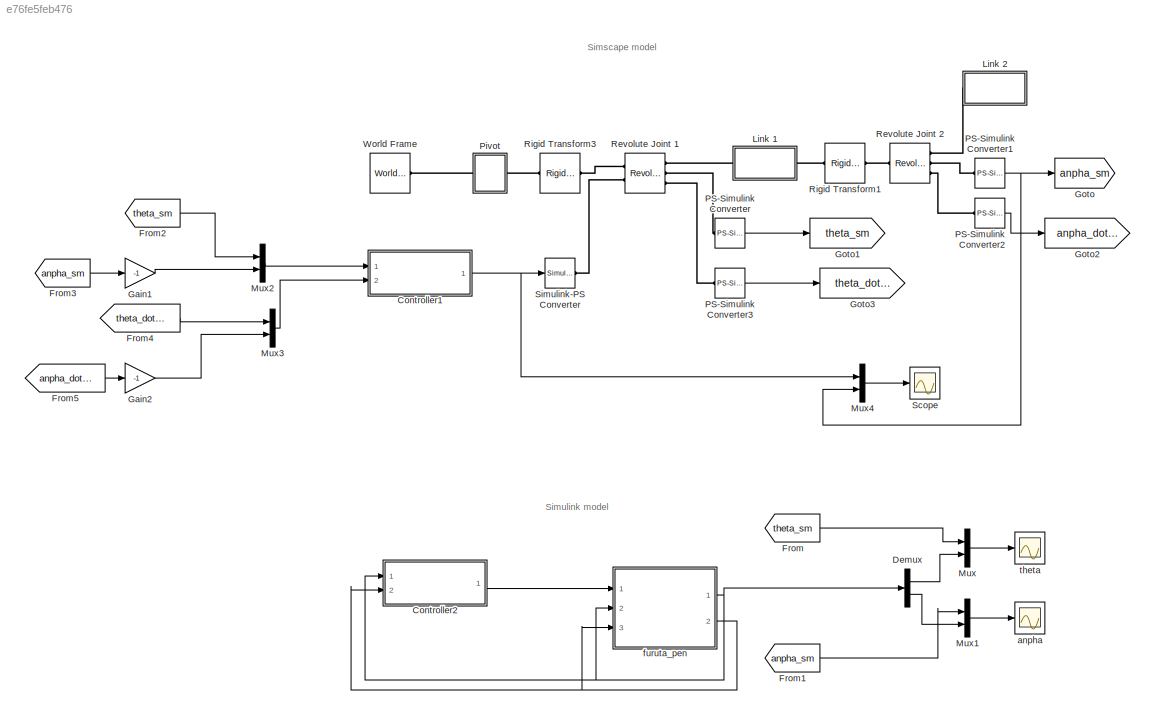
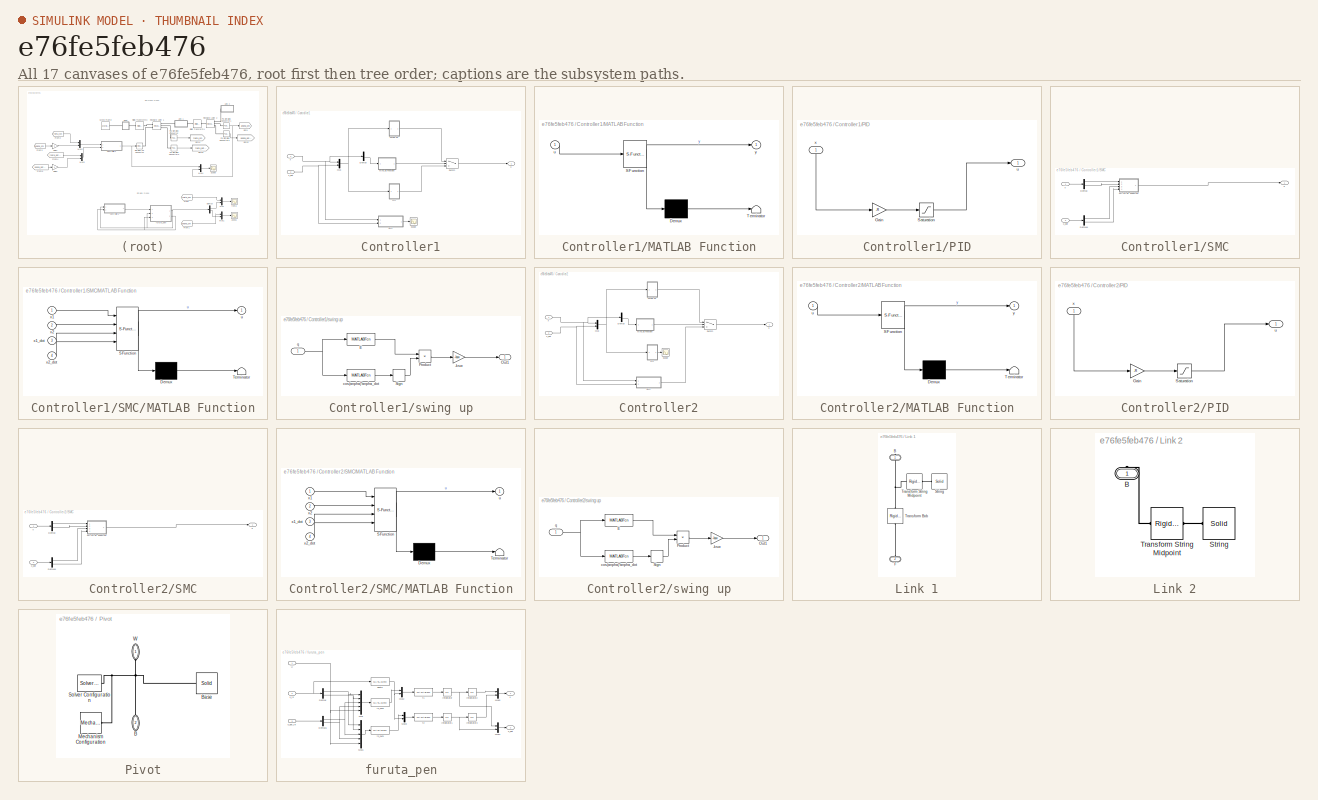
[diagram: thumbnail index - all 17 canvases of the model, root first then tree order]
MODEL slx_e76fe5feb476
KIND model
CONFIG AbsTol = auto
CONFIG EnableMultiTasking = off
CONFIG FixedStep = auto
CONFIG MaxStep = auto
CONFIG MinStep = auto
CONFIG RelTol = 1e-3
CONFIG SampleTimeConstraint = Unconstrained
CONFIG Solver = VariableStepAuto
CONFIG SolverName = VariableStepAuto
CONFIG StartTime = 0.0
CONFIG StopTime = 10.0
BLOCK [SubSystem] Controller1
  Ports = [2, 1]
  RequestExecContextInheritance = off
  Variant = off
BLOCK [Demux] Controller1/Demux
  DisplayOption = bar
  Outputs = 2
  Ports = [1, 2]
BLOCK [SubSystem] Controller1/MATLAB Function
  ErrorFcn = Stateflow.Translate.translate
  PermitHierarchicalResolution = ExplicitOnly
  Ports = [1, 1]
  RequestExecContextInheritance = off
  SFBlockType = MATLAB Function
  TreatAsAtomicUnit = on
  Variant = off
BLOCK [Demux] Controller1/MATLAB Function/ Demux 
  Outputs = 1
  Ports = [1, 1]
BLOCK [S-Function] Controller1/MATLAB Function/ SFunction 
  EnableBusSupport = on
  FunctionName = sf_sfun
  PortCounts = [1 2]
  Ports = [1, 2]
  SFcnIsStateOwnerBlock = off
  SFunctionDeploymentMode = off
  Tag = Stateflow S-Function furuta_pen 4
BLOCK [Terminator] Controller1/MATLAB Function/ Terminator 
BLOCK [Inport] Controller1/MATLAB Function/u
  IconDisplay = Port number
BLOCK [Outport] Controller1/MATLAB Function/y
  IconDisplay = Port number
BLOCK [Mux] Controller1/Mux
  DisplayOption = bar
  Inputs = 2
  Ports = [2, 1]
BLOCK [SubSystem] Controller1/PID
  Ports = [1, 1]
  RequestExecContextInheritance = off
  Variant = off
BLOCK [Gain] Controller1/PID/Gain
  Gain = -R
  Multiplication = Matrix(K*u)
  OutDataTypeStr = Inherit: Inherit via internal rule
  ParamDataTypeStr = Inherit: Inherit via internal rule
  SaturateOnIntegerOverflow = off
BLOCK [Saturate] Controller1/PID/Saturation
  InputPortMap = u0
  LowerLimit = -up
  Ports = [1, 1]
  UpperLimit = up
BLOCK [Outport] Controller1/PID/u
  IconDisplay = Port number
BLOCK [Inport] Controller1/PID/x
  IconDisplay = Port number
BLOCK [SubSystem] Controller1/SMC
  Ports = [2, 1]
  RequestExecContextInheritance = off
  Variant = off
BLOCK [Demux] Controller1/SMC/Demux
  DisplayOption = bar
  Outputs = 2
  Ports = [1, 2]
BLOCK [Demux] Controller1/SMC/Demux1
  DisplayOption = bar
  Outputs = 2
  Ports = [1, 2]
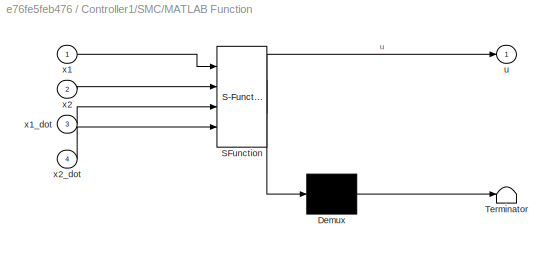
BLOCK [SubSystem] Controller1/SMC/MATLAB Function
  ErrorFcn = Stateflow.Translate.translate
  PermitHierarchicalResolution = ExplicitOnly
  Ports = [4, 1]
  RequestExecContextInheritance = off
  SFBlockType = MATLAB Function
  TreatAsAtomicUnit = on
  Variant = off
BLOCK [Demux] Controller1/SMC/MATLAB Function/ Demux 
  Outputs = 1
  Ports = [1, 1]
BLOCK [S-Function] Controller1/SMC/MATLAB Function/ SFunction 
  EnableBusSupport = on
  FunctionName = sf_sfun
  PortCounts = [4 2]
  Ports = [4, 2]
  SFcnIsStateOwnerBlock = off
  SFunctionDeploymentMode = off
  Tag = Stateflow S-Function furuta_pen 2
BLOCK [Terminator] Controller1/SMC/MATLAB Function/ Terminator 
BLOCK [Outport] Controller1/SMC/MATLAB Function/u
  IconDisplay = Port number
BLOCK [Inport] Controller1/SMC/MATLAB Function/x1
  IconDisplay = Port number
BLOCK [Inport] Controller1/SMC/MATLAB Function/x1_dot
  IconDisplay = Port number
  Port = 3
BLOCK [Inport] Controller1/SMC/MATLAB Function/x2
  IconDisplay = Port number
  Port = 2
BLOCK [Inport] Controller1/SMC/MATLAB Function/x2_dot
  IconDisplay = Port number
  Port = 4
BLOCK [Outport] Controller1/SMC/u
  IconDisplay = Port number
BLOCK [Inport] Controller1/SMC/x
  IconDisplay = Port number
BLOCK [Inport] Controller1/SMC/x_dot
  IconDisplay = Port number
  Port = 2
BLOCK [Scope] Controller1/Scope
  NumInputPorts = 1
  Ports = [1]
  ScopeSpecificationString = Simulink.scopes.TimeScopeBlockCfg('CurrentConfiguration', extmgr.ConfigurationSet(extmgr.Configuration('Core','General UI',true),extmgr.Configuration('Core','Source UI',true),extmgr.Configuration('Sources','WiredSimulink',true,'DataLoggingVariableName','ScopeData1'),extmgr.Configuration('Visuals','Time Domain',true),extmgr.Configuration('Tools','Plot Navigation',true),extmgr.Configuration('Tools',...<+40ch>
BLOCK [Switch] Controller1/Switch
  Criteria = u2 > Threshold
  InputSameDT = off
  SaturateOnIntegerOverflow = off
BLOCK [SubSystem] Controller1/swing up
  Ports = [1, 1]
  RequestExecContextInheritance = off
  Variant = off
BLOCK [Gain] Controller1/swing up/-ksw
  Gain = -ksw
  OutDataTypeStr = Inherit: Inherit via internal rule
  ParamDataTypeStr = Inherit: Inherit via internal rule
  SaturateOnIntegerOverflow = off
BLOCK [MATLABFcn] Controller1/swing up/E
  MATLABFcn = 1/2*(J1+m1*L1^2)*u(4)^2+m1*g*L1*(cos(u(2))-1)
  Ports = [1, 1]
BLOCK [Outport] Controller1/swing up/Out1
  IconDisplay = Port number
BLOCK [Product] Controller1/swing up/Product
  InputSameDT = off
  OutDataTypeStr = Inherit: Inherit via internal rule
  Ports = [2, 1]
  RndMeth = Floor
  SaturateOnIntegerOverflow = off
BLOCK [Signum] Controller1/swing up/Sign
BLOCK [MATLABFcn] Controller1/swing up/cos(anpha)*anpha_dot
  MATLABFcn = cos(u(2))*u(4)
  Ports = [1, 1]
BLOCK [Inport] Controller1/swing up/q
  IconDisplay = Port number
BLOCK [Outport] Controller1/u
  IconDisplay = Port number
BLOCK [Inport] Controller1/x
  IconDisplay = Port number
BLOCK [Inport] Controller1/x_dot
  IconDisplay = Port number
  Port = 2
BLOCK [SubSystem] Controller2
  Ports = [2, 1]
  RequestExecContextInheritance = off
  Variant = off
BLOCK [Demux] Controller2/Demux
  DisplayOption = bar
  Outputs = 2
  Ports = [1, 2]
BLOCK [SubSystem] Controller2/MATLAB Function
  ErrorFcn = Stateflow.Translate.translate
  PermitHierarchicalResolution = ExplicitOnly
  Ports = [1, 1]
  RequestExecContextInheritance = off
  SFBlockType = MATLAB Function
  TreatAsAtomicUnit = on
  Variant = off
BLOCK [Demux] Controller2/MATLAB Function/ Demux 
  Outputs = 1
  Ports = [1, 1]
BLOCK [S-Function] Controller2/MATLAB Function/ SFunction 
  EnableBusSupport = on
  FunctionName = sf_sfun
  PortCounts = [1 2]
  Ports = [1, 2]
  SFcnIsStateOwnerBlock = off
  SFunctionDeploymentMode = off
  Tag = Stateflow S-Function furuta_pen 1
BLOCK [Terminator] Controller2/MATLAB Function/ Terminator 
BLOCK [Inport] Controller2/MATLAB Function/u
  IconDisplay = Port number
BLOCK [Outport] Controller2/MATLAB Function/y
  IconDisplay = Port number
BLOCK [Mux] Controller2/Mux
  DisplayOption = bar
  Inputs = 2
  Ports = [2, 1]
BLOCK [SubSystem] Controller2/PID
  Ports = [1, 1]
  RequestExecContextInheritance = off
  Variant = off
BLOCK [Gain] Controller2/PID/Gain
  Gain = -R
  Multiplication = Matrix(K*u)
  OutDataTypeStr = Inherit: Inherit via internal rule
  ParamDataTypeStr = Inherit: Inherit via internal rule
  SaturateOnIntegerOverflow = off
BLOCK [Saturate] Controller2/PID/Saturation
  InputPortMap = u0
  LowerLimit = -up
  Ports = [1, 1]
  UpperLimit = up
BLOCK [Outport] Controller2/PID/u
  IconDisplay = Port number
BLOCK [Inport] Controller2/PID/x
  IconDisplay = Port number
BLOCK [SubSystem] Controller2/SMC
  Ports = [2, 1]
  RequestExecContextInheritance = off
  Variant = off
BLOCK [Demux] Controller2/SMC/Demux
  DisplayOption = bar
  Outputs = 2
  Ports = [1, 2]
BLOCK [Demux] Controller2/SMC/Demux1
  DisplayOption = bar
  Outputs = 2
  Ports = [1, 2]
BLOCK [SubSystem] Controller2/SMC/MATLAB Function
  ErrorFcn = Stateflow.Translate.translate
  PermitHierarchicalResolution = ExplicitOnly
  Ports = [4, 1]
  RequestExecContextInheritance = off
  SFBlockType = MATLAB Function
  TreatAsAtomicUnit = on
  Variant = off
BLOCK [Demux] Controller2/SMC/MATLAB Function/ Demux 
  Outputs = 1
  Ports = [1, 1]
BLOCK [S-Function] Controller2/SMC/MATLAB Function/ SFunction 
  EnableBusSupport = on
  FunctionName = sf_sfun
  PortCounts = [4 2]
  Ports = [4, 2]
  SFcnIsStateOwnerBlock = off
  SFunctionDeploymentMode = off
  Tag = Stateflow S-Function furuta_pen 3
BLOCK [Terminator] Controller2/SMC/MATLAB Function/ Terminator 
BLOCK [Outport] Controller2/SMC/MATLAB Function/u
  IconDisplay = Port number
BLOCK [Inport] Controller2/SMC/MATLAB Function/x1
  IconDisplay = Port number
BLOCK [Inport] Controller2/SMC/MATLAB Function/x1_dot
  IconDisplay = Port number
  Port = 3
BLOCK [Inport] Controller2/SMC/MATLAB Function/x2
  IconDisplay = Port number
  Port = 2
BLOCK [Inport] Controller2/SMC/MATLAB Function/x2_dot
  IconDisplay = Port number
  Port = 4
BLOCK [Outport] Controller2/SMC/u
  IconDisplay = Port number
BLOCK [Inport] Controller2/SMC/x
  IconDisplay = Port number
BLOCK [Inport] Controller2/SMC/x_dot
  IconDisplay = Port number
  Port = 2
BLOCK [Scope] Controller2/Scope
  NumInputPorts = 1
  Ports = [1]
  ScopeSpecificationString = Simulink.scopes.TimeScopeBlockCfg('CurrentConfiguration', extmgr.ConfigurationSet(extmgr.Configuration('Core','General UI',true),extmgr.Configuration('Core','Source UI',true),extmgr.Configuration('Sources','WiredSimulink',true,'DataLoggingVariableName','ScopeData1'),extmgr.Configuration('Visuals','Time Domain',true),extmgr.Configuration('Tools','Plot Navigation',true),extmgr.Configuration('Tools',...<+40ch>
BLOCK [Switch] Controller2/Switch
  Criteria = u2 > Threshold
  InputSameDT = off
  SaturateOnIntegerOverflow = off
BLOCK [SubSystem] Controller2/swing up
  Ports = [1, 1]
  RequestExecContextInheritance = off
  Variant = off
BLOCK [Gain] Controller2/swing up/-ksw
  Gain = -ksw
  OutDataTypeStr = Inherit: Inherit via internal rule
  ParamDataTypeStr = Inherit: Inherit via internal rule
  SaturateOnIntegerOverflow = off
BLOCK [MATLABFcn] Controller2/swing up/E
  MATLABFcn = 1/2*(J1+m1*L1^2)*u(4)^2+m1*g*L1*(cos(u(2))-1)
  Ports = [1, 1]
BLOCK [Outport] Controller2/swing up/Out1
  IconDisplay = Port number
BLOCK [Product] Controller2/swing up/Product
  InputSameDT = off
  OutDataTypeStr = Inherit: Inherit via internal rule
  Ports = [2, 1]
  RndMeth = Floor
  SaturateOnIntegerOverflow = off
BLOCK [Signum] Controller2/swing up/Sign
BLOCK [MATLABFcn] Controller2/swing up/cos(anpha)*anpha_dot
  MATLABFcn = cos(u(2))*u(4)
  Ports = [1, 1]
BLOCK [Inport] Controller2/swing up/q
  IconDisplay = Port number
BLOCK [Outport] Controller2/u
  IconDisplay = Port number
BLOCK [Inport] Controller2/x
  IconDisplay = Port number
BLOCK [Inport] Controller2/x_dot
  IconDisplay = Port number
  Port = 2
BLOCK [Demux] Demux
  DisplayOption = bar
  Outputs = 2
  Ports = [1, 2]
BLOCK [From] From
  GotoTag = theta_sm
BLOCK [From] From1
  GotoTag = anpha_sm
BLOCK [From] From2
  GotoTag = theta_sm
BLOCK [From] From3
  GotoTag = anpha_sm
BLOCK [From] From4
  GotoTag = theta_dot_sm
BLOCK [From] From5
  GotoTag = anpha_dot_sm
BLOCK [Gain] Gain1
  Gain = -1
  OutDataTypeStr = Inherit: Inherit via internal rule
  ParamDataTypeStr = Inherit: Inherit via internal rule
  SaturateOnIntegerOverflow = off
BLOCK [Gain] Gain2
  Gain = -1
  OutDataTypeStr = Inherit: Inherit via internal rule
  ParamDataTypeStr = Inherit: Inherit via internal rule
  SaturateOnIntegerOverflow = off
BLOCK [Goto] Goto
  GotoTag = anpha_sm
BLOCK [Goto] Goto1
  GotoTag = theta_sm
BLOCK [Goto] Goto2
  GotoTag = anpha_dot_sm
BLOCK [Goto] Goto3
  GotoTag = theta_dot_sm
BLOCK [SubSystem] Link 1
  Ports = [0, 0, 0, 0, 0, 1, 1]
  RequestExecContextInheritance = off
  Tag = CustomStyle
  Variant = off
BLOCK [PMIOPort] Link 1/B
  Port = 1
  Side = Right
BLOCK [PMIOPort] Link 1/F
  Port = 2
  Side = Left
BLOCK [Reference] Link 1/String  REF=sm_lib/Body Elements/Solid
  Ports = [0, 0, 0, 0, 0, 0, 1]
  SourceBlock = sm_lib/Body Elements/Solid
  SourceProductBaseCode = MS
  SourceProductName = Simscape Multibody
  SourceType = Solid
BLOCK [Reference] Link 1/Transform Bob   REF=sm_lib/Frames and
Transforms/Rigid
Transform
  Ports = [0, 0, 0, 0, 0, 1, 1]
  SourceBlock = sm_lib/Frames and\nTransforms/Rigid\nTransform
  SourceProductBaseCode = MS
  SourceProductName = Simscape Multibody
  SourceType = Rigid\nTransform
BLOCK [Reference] Link 1/Transform String Midpoint  REF=sm_lib/Frames and
Transforms/Rigid
Transform
  Ports = [0, 0, 0, 0, 0, 1, 1]
  SourceBlock = sm_lib/Frames and\nTransforms/Rigid\nTransform
  SourceProductBaseCode = MS
  SourceProductName = Simscape Multibody
  SourceType = Rigid\nTransform
BLOCK [SubSystem] Link 2
  Ports = [0, 0, 0, 0, 0, 0, 1]
  RequestExecContextInheritance = off
  Tag = CustomStyle
  Variant = off
BLOCK [PMIOPort] Link 2/B
  Port = 1
  Side = Right
BLOCK [Reference] Link 2/String  REF=sm_lib/Body Elements/Solid
  Ports = [0, 0, 0, 0, 0, 0, 1]
  SourceBlock = sm_lib/Body Elements/Solid
  SourceProductBaseCode = MS
  SourceProductName = Simscape Multibody
  SourceType = Solid
BLOCK [Reference] Link 2/Transform String Midpoint  REF=sm_lib/Frames and
Transforms/Rigid
Transform
  Ports = [0, 0, 0, 0, 0, 1, 1]
  SourceBlock = sm_lib/Frames and\nTransforms/Rigid\nTransform
  SourceProductBaseCode = MS
  SourceProductName = Simscape Multibody
  SourceType = Rigid\nTransform
BLOCK [Mux] Mux
  DisplayOption = bar
  Inputs = 2
  Ports = [2, 1]
BLOCK [Mux] Mux1
  DisplayOption = bar
  Inputs = 2
  Ports = [2, 1]
BLOCK [Mux] Mux2
  DisplayOption = bar
  Inputs = 2
  Ports = [2, 1]
BLOCK [Mux] Mux3
  DisplayOption = bar
  Inputs = 2
  Ports = [2, 1]
BLOCK [Mux] Mux4
  DisplayOption = bar
  Inputs = 2
  Ports = [2, 1]
BLOCK [Reference] PS-Simulink Converter  REF=nesl_utility/PS-Simulink
Converter
  Ports = [0, 1, 0, 0, 0, 1]
  SourceBlock = nesl_utility/PS-Simulink\nConverter
  SourceProductBaseCode = SS
  SourceProductName = Simscape
  SourceType = PS-Simulink\nConverter
BLOCK [Reference] PS-Simulink Converter1  REF=nesl_utility/PS-Simulink
Converter
  Ports = [0, 1, 0, 0, 0, 1]
  SourceBlock = nesl_utility/PS-Simulink\nConverter
  SourceProductBaseCode = SS
  SourceProductName = Simscape
  SourceType = PS-Simulink\nConverter
BLOCK [Reference] PS-Simulink Converter2  REF=nesl_utility/PS-Simulink
Converter
  Ports = [0, 1, 0, 0, 0, 1]
  SourceBlock = nesl_utility/PS-Simulink\nConverter
  SourceProductBaseCode = SS
  SourceProductName = Simscape
  SourceType = PS-Simulink\nConverter
BLOCK [Reference] PS-Simulink Converter3  REF=nesl_utility/PS-Simulink
Converter
  Ports = [0, 1, 0, 0, 0, 1]
  SourceBlock = nesl_utility/PS-Simulink\nConverter
  SourceProductBaseCode = SS
  SourceProductName = Simscape
  SourceType = PS-Simulink\nConverter
BLOCK [SubSystem] Pivot
  Ports = [0, 0, 0, 0, 0, 1, 1]
  RequestExecContextInheritance = off
  Tag = CustomStyle
  Variant = off
BLOCK [PMIOPort] Pivot/B
  Port = 2
  Side = Right
BLOCK [Reference] Pivot/Base  REF=sm_lib/Body Elements/Solid
  Ports = [0, 0, 0, 0, 0, 0, 1]
  SourceBlock = sm_lib/Body Elements/Solid
  SourceProductBaseCode = MS
  SourceProductName = Simscape Multibody
  SourceType = Solid
BLOCK [Reference] Pivot/Mechanism Configuration  REF=sm_lib/Utilities/Mechanism
Configuration
  Ports = [0, 0, 0, 0, 0, 0, 1]
  SourceBlock = sm_lib/Utilities/Mechanism\nConfiguration
  SourceProductBaseCode = MS
  SourceProductName = Simscape Multibody
  SourceType = Mechanism\nConfiguration
BLOCK [Reference] Pivot/Solver Configuration  REF=nesl_utility/Solver
Configuration
  Ports = [0, 0, 0, 0, 0, 0, 1]
  SourceBlock = nesl_utility/Solver\nConfiguration
  SourceProductBaseCode = SS
  SourceProductName = Simscape
  SourceType = Solver\nConfiguration
BLOCK [PMIOPort] Pivot/W
  Port = 1
  Side = Left
BLOCK [Reference] Revolute Joint 1  REF=sm_lib/Joints/Revolute Joint
  Ports = [0, 0, 0, 0, 0, 2, 3]
  SourceBlock = sm_lib/Joints/Revolute Joint
  SourceProductBaseCode = MS
  SourceProductName = Simscape Multibody
  SourceType = Revolute Joint
BLOCK [Reference] Revolute Joint 2  REF=sm_lib/Joints/Revolute Joint
  Ports = [0, 0, 0, 0, 0, 1, 3]
  SourceBlock = sm_lib/Joints/Revolute Joint
  SourceProductBaseCode = MS
  SourceProductName = Simscape Multibody
  SourceType = Revolute Joint
BLOCK [Reference] Rigid Transform1  REF=sm_lib/Frames and
Transforms/Rigid
Transform
  Ports = [0, 0, 0, 0, 0, 1, 1]
  SourceBlock = sm_lib/Frames and\nTransforms/Rigid\nTransform
  SourceProductBaseCode = MS
  SourceProductName = Simscape Multibody
  SourceType = Rigid\nTransform
BLOCK [Reference] Rigid Transform3  REF=sm_lib/Frames and
Transforms/Rigid
Transform
  Ports = [0, 0, 0, 0, 0, 1, 1]
  SourceBlock = sm_lib/Frames and\nTransforms/Rigid\nTransform
  SourceProductBaseCode = MS
  SourceProductName = Simscape Multibody
  SourceType = Rigid\nTransform
BLOCK [Scope] Scope
  NumInputPorts = 1
  Ports = [1]
  ScopeSpecificationString = Simulink.scopes.TimeScopeBlockCfg('CurrentConfiguration', extmgr.ConfigurationSet(extmgr.Configuration('Core','General UI',true),extmgr.Configuration('Core','Source UI',true),extmgr.Configuration('Sources','WiredSimulink',true,'DataLoggingVariableName','ScopeData1'),extmgr.Configuration('Visuals','Time Domain',true,'SerializedDisplays',{struct('MinYLimReal','-125.00000','MaxYLimReal','125.00000','...<+1483ch>
BLOCK [Reference] Simulink-PS Converter  REF=nesl_utility/Simulink-PS
Converter
  Ports = [1, 0, 0, 0, 0, 0, 1]
  SourceBlock = nesl_utility/Simulink-PS\nConverter
  SourceProductBaseCode = SS
  SourceProductName = Simscape
  SourceType = Simulink-PS\nConverter
BLOCK [Reference] World Frame  REF=sm_lib/Frames and
Transforms/World Frame
  Ports = [0, 0, 0, 0, 0, 0, 1]
  SourceBlock = sm_lib/Frames and\nTransforms/World Frame
  SourceProductBaseCode = MS
  SourceProductName = Simscape Multibody
  SourceType = World Frame
BLOCK [Scope] anpha
  NumInputPorts = 1
  Ports = [1]
  ScopeSpecificationString = Simulink.scopes.TimeScopeBlockCfg('CurrentConfiguration', extmgr.ConfigurationSet(extmgr.Configuration('Core','General UI',true),extmgr.Configuration('Core','Source UI',true),extmgr.Configuration('Sources','WiredSimulink',true,'DataLoggingVariableName','ScopeData1'),extmgr.Configuration('Visuals','Time Domain',true,'SerializedDisplays',{struct('MinYLimReal','-0.30589','MaxYLimReal','0.44831','YLab...<+1491ch>
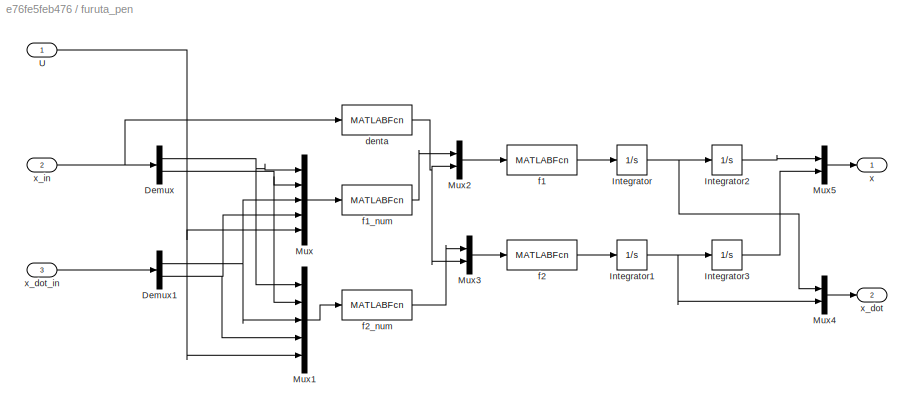
BLOCK [SubSystem] furuta_pen
  Ports = [3, 2]
  RequestExecContextInheritance = off
  Variant = off
BLOCK [Demux] furuta_pen/Demux
  DisplayOption = bar
  Outputs = 2
  Ports = [1, 2]
BLOCK [Demux] furuta_pen/Demux1
  DisplayOption = bar
  Outputs = 2
  Ports = [1, 2]
BLOCK [Integrator] furuta_pen/Integrator
  Ports = [1, 1]
BLOCK [Integrator] furuta_pen/Integrator1
  Ports = [1, 1]
BLOCK [Integrator] furuta_pen/Integrator2
  InitialCondition = theta_0*pi/180
  Ports = [1, 1]
BLOCK [Integrator] furuta_pen/Integrator3
  InitialCondition = anpha_0/180*pi
  Ports = [1, 1]
BLOCK [Mux] furuta_pen/Mux
  DisplayOption = bar
  Inputs = 5
  Ports = [5, 1]
BLOCK [Mux] furuta_pen/Mux1
  DisplayOption = bar
  Inputs = 5
  Ports = [5, 1]
BLOCK [Mux] furuta_pen/Mux2
  DisplayOption = bar
  Inputs = 2
  Ports = [2, 1]
BLOCK [Mux] furuta_pen/Mux3
  DisplayOption = bar
  Inputs = 2
  Ports = [2, 1]
BLOCK [Mux] furuta_pen/Mux4
  DisplayOption = bar
  Inputs = 2
  Ports = [2, 1]
BLOCK [Mux] furuta_pen/Mux5
  DisplayOption = bar
  Inputs = 2
  Ports = [2, 1]
BLOCK [Inport] furuta_pen/U
  IconDisplay = Port number
BLOCK [MATLABFcn] furuta_pen/denta
  MATLABFcn = J0*J1+m1^2*L1^4*sin(u(2))^2+m1^2*L0^2*L1^2+J0*m1*L1^2+J1*m1*L0^2+J1*m1*L1^2*sin(u(2))^2-m1^2*L0^2*L1^2*cos(u(2))^2
  Ports = [1, 1]
BLOCK [MATLABFcn] furuta_pen/f1
  MATLABFcn = u(1)/u(2)
  Ports = [1, 1]
BLOCK [MATLABFcn] furuta_pen/f1_num
  MATLABFcn = m1*L0*L1*cos(u(2))*(0.5*m1*L1^2*sin(2*u(2))*u(3)^2+m1*g*L1*sin(u(2))-beta1*u(4))-(m1*L1^2+J1)*(m1*L1^2*sin(2*u(2))*u(3)*u(4)+m1*L0*L1*sin(u(2))*u(4)^2-u(5)+beta0*u(3))
  Ports = [1, 1]
BLOCK [MATLABFcn] furuta_pen/f2
  MATLABFcn = u(1)/u(2)
  Ports = [1, 1]
BLOCK [MATLABFcn] furuta_pen/f2_num
  MATLABFcn = (m1*L0^2+m1*L1^2*sin(u(2))^2+J0)*(0.5*m1*L1^2*sin(2*u(2))*u(3)^2+m1*g*L1*sin(u(2))-beta1*u(4))-m1*L0*L1*cos(u(2))*(m1*L1^2*sin(2*u(2))*u(3)*u(4)+m1*L0*L1*sin(u(2))*u(4)^2-u(5)+beta0*u(3))
  Ports = [1, 1]
BLOCK [Outport] furuta_pen/x
  IconDisplay = Port number
BLOCK [Outport] furuta_pen/x_dot
  IconDisplay = Port number
  Port = 2
BLOCK [Inport] furuta_pen/x_dot_in
  IconDisplay = Port number
  Port = 3
BLOCK [Inport] furuta_pen/x_in
  IconDisplay = Port number
  Port = 2
BLOCK [Scope] theta
  NumInputPorts = 1
  Ports = [1]
  ScopeSpecificationString = Simulink.scopes.TimeScopeBlockCfg('CurrentConfiguration', extmgr.ConfigurationSet(extmgr.Configuration('Core','General UI',true),extmgr.Configuration('Core','Source UI',true),extmgr.Configuration('Sources','WiredSimulink',true),extmgr.Configuration('Visuals','Time Domain',true,'SerializedDisplays',{struct('MinYLimReal','-32.05199','MaxYLimReal','271.17563','YLabelReal','','MinYLimMag','0.00000','M...<+1458ch>
ANNOTATION (root): Simscape model
ANNOTATION (root): Simulink model
LINE Controller1/Demux:2 -> Controller1/MATLAB Function:1
LINE Controller1/MATLAB Function:1 -> Controller1/Switch:2
NET Controller1/Mux:1 -> Controller1/PID:1, Controller1/swing up:1
LINE Controller1/PID/Gain:1 -> Controller1/PID/Saturation:1
LINE Controller1/PID/Saturation:1 -> Controller1/PID/u:1
LINE Controller1/PID/x:1 -> Controller1/PID/Gain:1
LINE Controller1/PID:1 -> Controller1/Switch:3
LINE Controller1/SMC/Demux1:1 -> Controller1/SMC/MATLAB Function:3
LINE Controller1/SMC/Demux1:2 -> Controller1/SMC/MATLAB Function:4
LINE Controller1/SMC/Demux:1 -> Controller1/SMC/MATLAB Function:1
LINE Controller1/SMC/Demux:2 -> Controller1/SMC/MATLAB Function:2
LINE Controller1/SMC/MATLAB Function:1 -> Controller1/SMC/u:1
LINE Controller1/SMC/x:1 -> Controller1/SMC/Demux:1
LINE Controller1/SMC/x_dot:1 -> Controller1/SMC/Demux1:1
LINE Controller1/SMC:1 -> Controller1/Scope:1
LINE Controller1/Switch:1 -> Controller1/u:1
LINE Controller1/swing up/-ksw:1 -> Controller1/swing up/Out1:1
LINE Controller1/swing up/E:1 -> Controller1/swing up/Product:1
LINE Controller1/swing up/Product:1 -> Controller1/swing up/-ksw:1
LINE Controller1/swing up/Sign:1 -> Controller1/swing up/Product:2
LINE Controller1/swing up/cos(anpha)*anpha_dot:1 -> Controller1/swing up/Sign:1
NET Controller1/swing up/q:1 -> Controller1/swing up/E:1, Controller1/swing up/cos(anpha)*anpha_dot:1
LINE Controller1/swing up:1 -> Controller1/Switch:1
NET Controller1/x:1 -> Controller1/Demux:1, Controller1/Mux:1, Controller1/SMC:1
NET Controller1/x_dot:1 -> Controller1/Mux:2, Controller1/SMC:2
NET Controller1:1 -> Mux4:1, Simulink-PS Converter:1
LINE Controller2/Demux:2 -> Controller2/MATLAB Function:1
LINE Controller2/MATLAB Function:1 -> Controller2/Switch:2
NET Controller2/Mux:1 -> Controller2/PID:1, Controller2/swing up:1
LINE Controller2/PID/Gain:1 -> Controller2/PID/Saturation:1
LINE Controller2/PID/Saturation:1 -> Controller2/PID/u:1
LINE Controller2/PID/x:1 -> Controller2/PID/Gain:1
LINE Controller2/PID:1 -> Controller2/Scope:1
LINE Controller2/SMC/Demux1:1 -> Controller2/SMC/MATLAB Function:3
LINE Controller2/SMC/Demux1:2 -> Controller2/SMC/MATLAB Function:4
LINE Controller2/SMC/Demux:1 -> Controller2/SMC/MATLAB Function:1
LINE Controller2/SMC/Demux:2 -> Controller2/SMC/MATLAB Function:2
LINE Controller2/SMC/MATLAB Function:1 -> Controller2/SMC/u:1
LINE Controller2/SMC/x:1 -> Controller2/SMC/Demux:1
LINE Controller2/SMC/x_dot:1 -> Controller2/SMC/Demux1:1
LINE Controller2/SMC:1 -> Controller2/Switch:3
LINE Controller2/Switch:1 -> Controller2/u:1
LINE Controller2/swing up/-ksw:1 -> Controller2/swing up/Out1:1
LINE Controller2/swing up/E:1 -> Controller2/swing up/Product:1
LINE Controller2/swing up/Product:1 -> Controller2/swing up/-ksw:1
LINE Controller2/swing up/Sign:1 -> Controller2/swing up/Product:2
LINE Controller2/swing up/cos(anpha)*anpha_dot:1 -> Controller2/swing up/Sign:1
NET Controller2/swing up/q:1 -> Controller2/swing up/E:1, Controller2/swing up/cos(anpha)*anpha_dot:1
LINE Controller2/swing up:1 -> Controller2/Switch:1
NET Controller2/x:1 -> Controller2/Demux:1, Controller2/Mux:1, Controller2/SMC:1
NET Controller2/x_dot:1 -> Controller2/Mux:2, Controller2/SMC:2
LINE Controller2:1 -> furuta_pen:1
LINE Demux:1 -> Mux:2
LINE Demux:2 -> Mux1:2
LINE From1:1 -> Mux1:1
LINE From2:1 -> Mux2:1
LINE From3:1 -> Gain1:1
LINE From4:1 -> Mux3:1
LINE From5:1 -> Gain2:1
LINE From:1 -> Mux:1
LINE Gain1:1 -> Mux2:2
LINE Gain2:1 -> Mux3:2
LINE Mux1:1 -> anpha:1
LINE Mux2:1 -> Controller1:1
LINE Mux3:1 -> Controller1:2
LINE Mux4:1 -> Scope:1
LINE Mux:1 -> theta:1
NET PS-Simulink Converter1:1 -> Goto:1, Mux4:2
LINE PS-Simulink Converter2:1 -> Goto2:1
LINE PS-Simulink Converter3:1 -> Goto3:1
LINE PS-Simulink Converter:1 -> Goto1:1
NET furuta_pen/Demux1:1 -> furuta_pen/Mux1:3, furuta_pen/Mux:3
NET furuta_pen/Demux1:2 -> furuta_pen/Mux1:4, furuta_pen/Mux:4
NET furuta_pen/Demux:1 -> furuta_pen/Mux1:1, furuta_pen/Mux:1
NET furuta_pen/Demux:2 -> furuta_pen/Mux1:2, furuta_pen/Mux:2
NET furuta_pen/Integrator1:1 -> furuta_pen/Integrator3:1, furuta_pen/Mux4:2
LINE furuta_pen/Integrator2:1 -> furuta_pen/Mux5:1
LINE furuta_pen/Integrator3:1 -> furuta_pen/Mux5:2
NET furuta_pen/Integrator:1 -> furuta_pen/Integrator2:1, furuta_pen/Mux4:1
LINE furuta_pen/Mux1:1 -> furuta_pen/f2_num:1
LINE furuta_pen/Mux2:1 -> furuta_pen/f1:1
LINE furuta_pen/Mux3:1 -> furuta_pen/f2:1
LINE furuta_pen/Mux4:1 -> furuta_pen/x_dot:1
LINE furuta_pen/Mux5:1 -> furuta_pen/x:1
LINE furuta_pen/Mux:1 -> furuta_pen/f1_num:1
NET furuta_pen/U:1 -> furuta_pen/Mux1:5, furuta_pen/Mux:5
NET furuta_pen/denta:1 -> furuta_pen/Mux2:2, furuta_pen/Mux3:2
LINE furuta_pen/f1:1 -> furuta_pen/Integrator:1
LINE furuta_pen/f1_num:1 -> furuta_pen/Mux2:1
LINE furuta_pen/f2:1 -> furuta_pen/Integrator1:1
LINE furuta_pen/f2_num:1 -> furuta_pen/Mux3:1
LINE furuta_pen/x_dot_in:1 -> furuta_pen/Demux1:1
NET furuta_pen/x_in:1 -> furuta_pen/Demux:1, furuta_pen/denta:1
NET furuta_pen:1 -> Controller2:1, Demux:1, furuta_pen:2
NET furuta_pen:2 -> Controller2:2, furuta_pen:3
PNET net1: Link 1/B:RConn1 -- Link 1/Transform Bob :LConn1 -- Link 1/Transform String Midpoint:LConn1
PLINE Link 1/F:RConn1 -- Link 1/Transform Bob :RConn1
PLINE Link 1/String:RConn1 -- Link 1/Transform String Midpoint:RConn1
PLINE Link 1:LConn1 -- Rigid Transform1:LConn1
PLINE Link 1:RConn1 -- Revolute Joint 1:RConn1
PLINE Link 2/B:RConn1 -- Link 2/Transform String Midpoint:LConn1
PLINE Link 2/String:RConn1 -- Link 2/Transform String Midpoint:RConn1
PLINE Link 2:RConn1 -- Revolute Joint 2:RConn1
PLINE PS-Simulink Converter1:LConn1 -- Revolute Joint 2:RConn2
PLINE PS-Simulink Converter2:LConn1 -- Revolute Joint 2:RConn3
PLINE PS-Simulink Converter3:LConn1 -- Revolute Joint 1:RConn3
PLINE PS-Simulink Converter:LConn1 -- Revolute Joint 1:RConn2
PNET net2: Pivot/B:RConn1 -- Pivot/Base:RConn1 -- Pivot/Mechanism Configuration:RConn1 -- Pivot/Solver Configuration:RConn1 -- Pivot/W:RConn1
PLINE Pivot:LConn1 -- World Frame:RConn1
PLINE Pivot:RConn1 -- Rigid Transform3:LConn1
PLINE Revolute Joint 1:LConn1 -- Rigid Transform3:RConn1
PLINE Revolute Joint 1:LConn2 -- Simulink-PS Converter:RConn1
PLINE Revolute Joint 2:LConn1 -- Rigid Transform1:RConn1
note: NET lines group one-source signal fan-out (src -> all destinations, sorted); 1:1 wires keep LINE; PNET lines group multi-terminal physical nets as a canonical sorted terminal list (undirected conserving connections); 2-terminal nets keep the pairwise PLINE form
CHART Controller2/MATLAB Function states=1 transitions=1
  STATE_LABEL 'eML_blk_kernel()'
  STATE_LABEL 'SCRIPT:\nfunction y = fcn(u)\nif abs(u)<20*pi/180\n    y = 0;\nelse\n    y= 1;\nend'
CHART Controller1/SMC/MATLAB Function states=1 transitions=1
  STATE_LABEL 'eML_blk_kernel()'
  STATE_LABEL "SCRIPT:\nfunction u = fcn(x1,x2,x1_dot,x2_dot)\nb = [14.8452;12.5278];\nC = [0,17.3564;\n    0,67.377];\nD = [-0.1172,-0.2411;\n    -0.0989,-0.09359];\nM = [0.5,0;\n    0,10];\nQ= [5/16,-3/4;\n    -3/4,9/4];\nR = [161/160 -3;\n    -3 9];\nx = [x1;x2];\nx_dot = [x1_dot;x2_dot];\ns = M*x+x_dot;\nu = -(s'*R*s+s'*Q*(M+D)*x_dot+s'*Q*C*x)/(s'*Q*b);\n"
CHART Controller2/SMC/MATLAB Function states=1 transitions=1
  STATE_LABEL 'eML_blk_kernel()'
  STATE_LABEL "SCRIPT:\nfunction u = fcn(x1,x2,x1_dot,x2_dot)\nb = [14.8452;12.5278];\nC = [0,17.3564;\n    0,67.377];\nD = [-0.1172,-0.2411;\n    -0.0989,-0.09359];\nM = [0.5,0;\n    0,10];\nQ= [5/16,-3/4;\n    -3/4,9/4];\nR = [161/160 -3;\n    -3 9];\nx = [x1;x2];\nx_dot = [x1_dot;x2_dot];\ns = M*x+x_dot;\nu = -(s'*R*s+s'*Q*(M+D)*x_dot+s'*Q*C*x)/(s'*Q*b);\n"
CHART Controller1/MATLAB Function states=1 transitions=1
  STATE_LABEL 'eML_blk_kernel()'
  STATE_LABEL 'SCRIPT:\nfunction y = fcn(u)\nif abs(u)<20*pi/180\n    y = 0;\nelse\n    y= 1;\nend'
